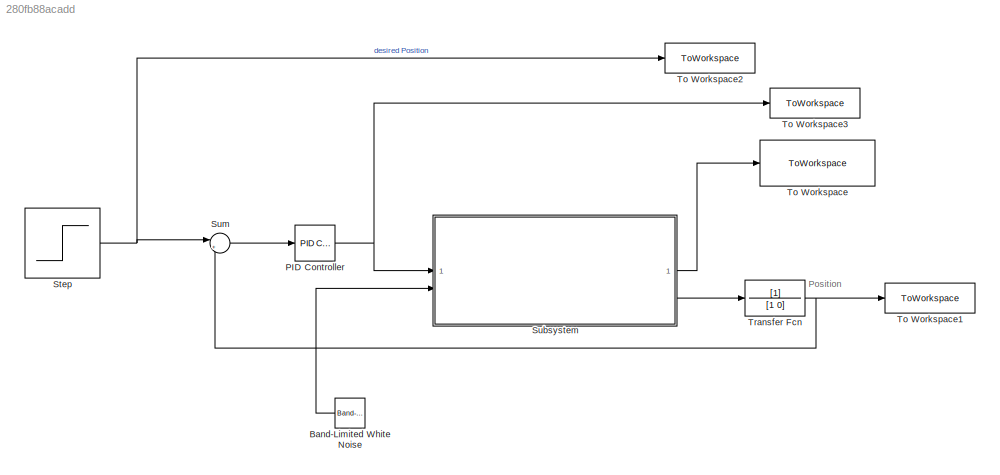
MODEL slx_280fb88acadd
KIND model
CONFIG AbsTol = auto
CONFIG EnableMultiTasking = off
CONFIG FixedStep = auto
CONFIG MaxStep = auto
CONFIG MinStep = auto
CONFIG RelTol = 1e-3
CONFIG SampleTimeConstraint = Unconstrained
CONFIG SolverName = VariableStepAuto
CONFIG StartTime = 0.0
CONFIG StopTime = 3
BLOCK [Reference] Band-Limited White Noise  REF=simulink/Sources/Band-Limited
White Noise
  SourceBlock = simulink/Sources/Band-Limited\nWhite Noise
  SourceType = Band-Limited White Noise.
BLOCK [Reference] PID Controller  REF=slpidlib/PID Controller
  LibrarySourceBlock = simulink/Continuous/PID Controller
  SourceBlock = slpidlib/PID Controller
  SourceType = PID 1dof
BLOCK [Step] Step
  After = 3.14
  SampleTime = 0
  Time = 2
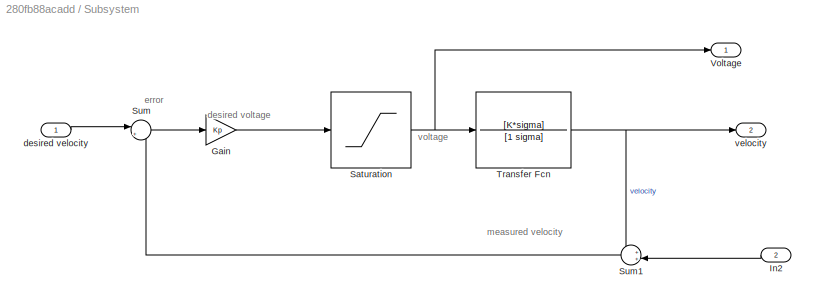
BLOCK [SubSystem] Subsystem
BLOCK [Gain] Subsystem/Gain
  Gain = Kp
BLOCK [Inport] Subsystem/In2
  Port = 2
BLOCK [Saturate] Subsystem/Saturation
  LowerLimit = -7.5
  UpperLimit = 7.5
BLOCK [Sum] Subsystem/Sum
  Inputs = |+-
BLOCK [Sum] Subsystem/Sum1
  Inputs = ++|
  NameLocation = top
BLOCK [TransferFcn] Subsystem/Transfer Fcn
  Denominator = [1 sigma]
  Numerator = [K*sigma]
BLOCK [Outport] Subsystem/Voltage
BLOCK [Inport] Subsystem/desired velocity
BLOCK [Outport] Subsystem/velocity
  Port = 2
BLOCK [Sum] Sum
  Inputs = |+-
BLOCK [ToWorkspace] To Workspace
  FixptAsFi = on
  MaxDataPoints = inf
  SampleTime = -1
  SaveFormat = Timeseries
  VariableName = Voltage
BLOCK [ToWorkspace] To Workspace1
  FixptAsFi = on
  MaxDataPoints = inf
  SampleTime = -1
  SaveFormat = Timeseries
  VariableName = Position
BLOCK [ToWorkspace] To Workspace2
  FixptAsFi = on
  MaxDataPoints = inf
  SampleTime = -1
  SaveFormat = Timeseries
  VariableName = DesiredPosition
BLOCK [ToWorkspace] To Workspace3
  FixptAsFi = on
  MaxDataPoints = inf
  SampleTime = -1
  SaveFormat = Timeseries
  VariableName = DesiredVelocity
BLOCK [TransferFcn] Transfer Fcn
  Denominator = [1 0]
ANNOTATION (root): Position
ANNOTATION Subsystem: desired voltage
ANNOTATION Subsystem: error
ANNOTATION Subsystem: measured velocity
ANNOTATION Subsystem: voltage
LINE Band-Limited White Noise:1 -> Subsystem:2
NET PID Controller:1 -> Subsystem:1, To Workspace3:1
NET Step:1 -> Sum:1, To Workspace2:1
LINE Subsystem/Gain:1 -> Subsystem/Saturation:1
LINE Subsystem/In2:1 -> Subsystem/Sum1:2
NET Subsystem/Saturation:1 -> Subsystem/Transfer Fcn:1, Subsystem/Voltage:1
LINE Subsystem/Sum1:1 -> Subsystem/Sum:2
LINE Subsystem/Sum:1 -> Subsystem/Gain:1
NET Subsystem/Transfer Fcn:1 -> Subsystem/Sum1:1, Subsystem/velocity:1
LINE Subsystem/desired velocity:1 -> Subsystem/Sum:1
LINE Subsystem:1 -> To Workspace:1
LINE Subsystem:2 -> Transfer Fcn:1
LINE Sum:1 -> PID Controller:1
NET Transfer Fcn:1 -> Sum:2, To Workspace1:1
note: NET lines group one-source signal fan-out (src -> all destinations, sorted); 1:1 wires keep LINE
